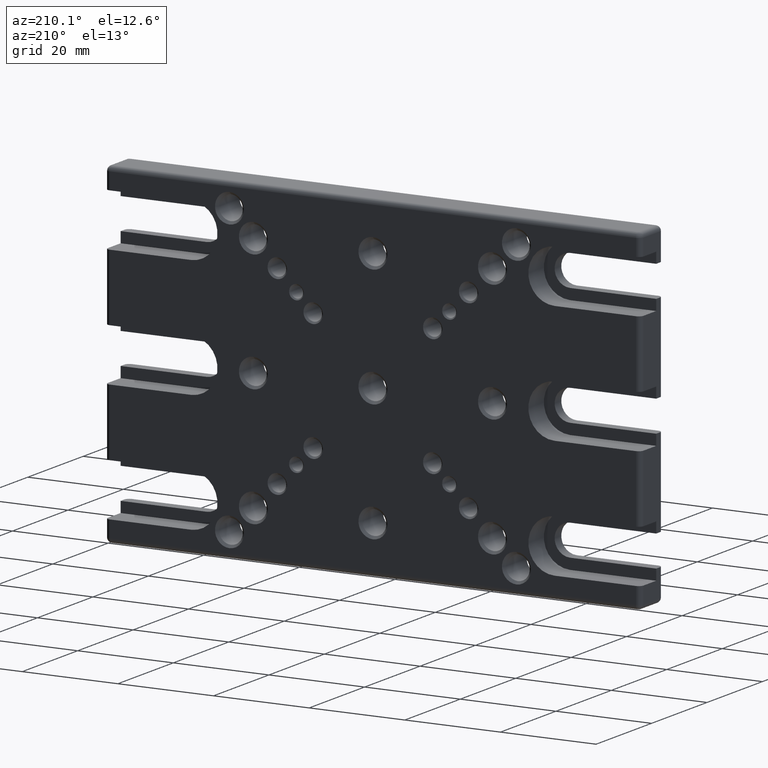
[diagram: clean part render]
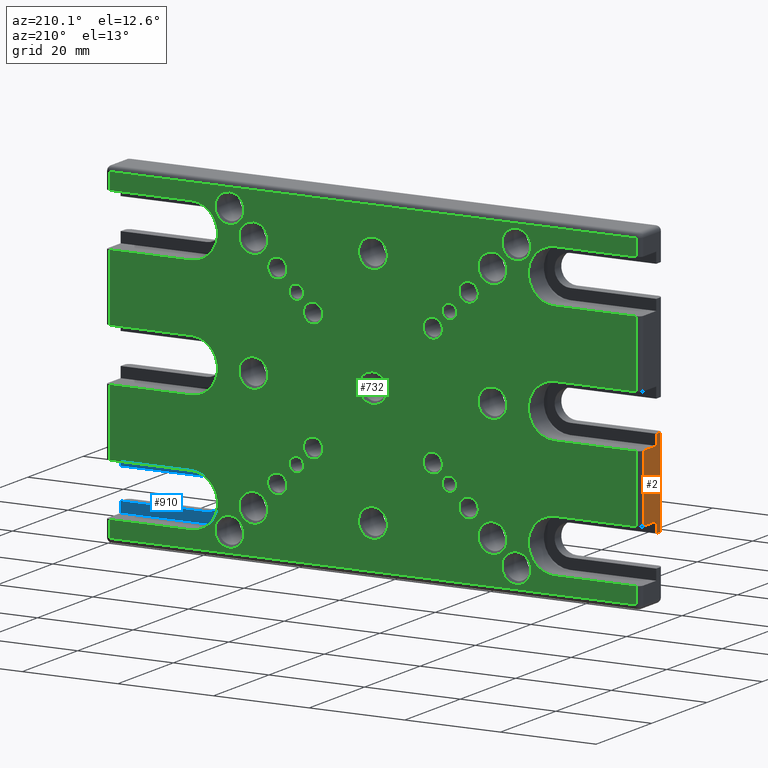
[diagram: same view with three faces highlighted in distinct colors, each labeled with its STEP entity id]
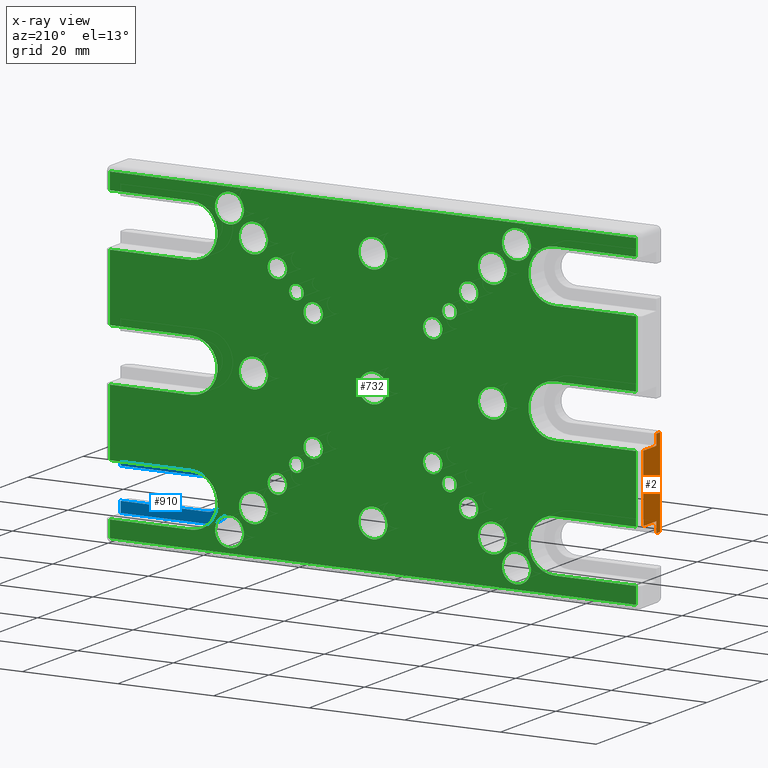
[diagram: x-ray of the same camera — body ghosted, the three highlighted faces saturated]
A machine part, auxiliary view with three faces highlighted in distinct colors.
The next image is the same camera in x-ray (body ghosted, the three faces saturated) — at least one of them is partly hidden behind the body in this view.
Their STEP definitions:

[orange] entity #2 — the highlighted planar face has unit normal (1, 0, 0).
#2 = ADVANCED_FACE ( 'NONE', ( #1616 ), #2871, .F. ) ;
#50 = EDGE_CURVE ( 'NONE', #738, #3254, #495, .T. ) ;
#123 = VERTEX_POINT ( 'NONE', #1476 ) ;
#167 = ORIENTED_EDGE ( 'NONE', *, *, #2212, .T. ) ;
#186 = VERTEX_POINT ( 'NONE', #2132 ) ;
#208 = CARTESIAN_POINT ( 'NONE',  ( -56.00000000000000000, 7.000000000000000000, -34.00000000000000711 ) ) ;
#222 = LINE ( 'NONE', #2743, #764 ) ;
#295 = EDGE_CURVE ( 'NONE', #510, #748, #3774, .T. ) ;
#460 = CARTESIAN_POINT ( 'NONE',  ( -56.00000000000000000, 8.000000000000000000, -3.249999999999996003 ) ) ;
#495 = LINE ( 'NONE', #3657, #2932 ) ;
#510 = VERTEX_POINT ( 'NONE', #2943 ) ;
#540 = DIRECTION ( 'NONE',  ( 0.000000000000000000, 1.000000000000000000, 0.000000000000000000 ) ) ;
#563 = CARTESIAN_POINT ( 'NONE',  ( -56.00000000000000000, 2.400000000000000355, -21.75000000000000000 ) ) ;
#640 = EDGE_CURVE ( 'NONE', #3254, #510, #3329, .T. ) ;
#715 = ORIENTED_EDGE ( 'NONE', *, *, #295, .F. ) ;
#738 = VERTEX_POINT ( 'NONE', #2509 ) ;
#748 = VERTEX_POINT ( 'NONE', #956 ) ;
#764 = VECTOR ( 'NONE', #1216, 1000.000000000000000 ) ;
#838 = VECTOR ( 'NONE', #2889, 1000.000000000000000 ) ;
#896 = DIRECTION ( 'NONE',  ( -0.000000000000000000, 0.000000000000000000, 1.000000000000000000 ) ) ;
#904 = ORIENTED_EDGE ( 'NONE', *, *, #3817, .F. ) ;
#912 = CARTESIAN_POINT ( 'NONE',  ( -56.00000000000000000, 8.000000000000000000, -19.49999999999994671 ) ) ;
#956 = CARTESIAN_POINT ( 'NONE',  ( -56.00000000000000000, 7.000000000000000000, -19.49999999999994671 ) ) ;
#1190 = VECTOR ( 'NONE', #3173, 1000.000000000000000 ) ;
#1216 = DIRECTION ( 'NONE',  ( 0.000000000000000000, 0.000000000000000000, 1.000000000000000000 ) ) ;
#1272 = EDGE_CURVE ( 'NONE', #186, #748, #3648, .T. ) ;
#1476 = CARTESIAN_POINT ( 'NONE',  ( -56.00000000000000000, 2.400000000000000355, -3.249999999999995115 ) ) ;
#1616 = FACE_OUTER_BOUND ( 'NONE', #2246, .T. ) ;
#1620 = VECTOR ( 'NONE', #1826, 1000.000000000000000 ) ;
#1654 = ORIENTED_EDGE ( 'NONE', *, *, #2047, .T. ) ;
#1826 = DIRECTION ( 'NONE',  ( 0.000000000000000000, 1.000000000000000000, 0.000000000000000000 ) ) ;
#1865 = CARTESIAN_POINT ( 'NONE',  ( -56.00000000000000000, 2.400000000000000355, -35.00000000000000711 ) ) ;
#1890 = EDGE_CURVE ( 'NONE', #3431, #186, #3503, .T. ) ;
#2008 = AXIS2_PLACEMENT_3D ( 'NONE', #2987, #2757, #2385 ) ;
#2047 = EDGE_CURVE ( 'NONE', #738, #2102, #222, .T. ) ;
#2071 = DIRECTION ( 'NONE',  ( 0.000000000000000000, 1.000000000000000000, 0.000000000000000000 ) ) ;
#2102 = VERTEX_POINT ( 'NONE', #4054 ) ;
#2132 = CARTESIAN_POINT ( 'NONE',  ( -56.00000000000000000, 7.000000000000000000, -5.499999999999998224 ) ) ;
#2212 = EDGE_CURVE ( 'NONE', #2102, #123, #2696, .T. ) ;
#2246 = EDGE_LOOP ( 'NONE', ( #715, #4034, #3275, #1654, #167, #904, #2593, #3609 ) ) ;
#2385 = DIRECTION ( 'NONE',  ( 0.000000000000000000, 0.000000000000000000, -1.000000000000000000 ) ) ;
#2509 = CARTESIAN_POINT ( 'NONE',  ( -56.00000000000000000, 1.000000000000000000, -21.75000000000000000 ) ) ;
#2549 = VECTOR ( 'NONE', #2071, 1000.000000000000000 ) ;
#2593 = ORIENTED_EDGE ( 'NONE', *, *, #1890, .T. ) ;
#2696 = LINE ( 'NONE', #460, #2549 ) ;
#2743 = CARTESIAN_POINT ( 'NONE',  ( -56.00000000000000000, 1.000000000000000000, -35.00000000000000711 ) ) ;
#2757 = DIRECTION ( 'NONE',  ( 1.000000000000000000, 0.000000000000000000, 0.000000000000000000 ) ) ;
#2835 = LINE ( 'NONE', #1865, #1190 ) ;
#2871 = PLANE ( 'NONE',  #2008 ) ;
#2889 = DIRECTION ( 'NONE',  ( 0.000000000000000000, 1.000000000000000000, 0.000000000000000000 ) ) ;
#2913 = CARTESIAN_POINT ( 'NONE',  ( -56.00000000000000000, 8.000000000000000000, -5.499999999999998224 ) ) ;
#2932 = VECTOR ( 'NONE', #540, 1000.000000000000000 ) ;
#2941 = DIRECTION ( 'NONE',  ( 0.000000000000000000, -0.000000000000000000, -1.000000000000000000 ) ) ;
#2943 = CARTESIAN_POINT ( 'NONE',  ( -56.00000000000000000, 2.400000000000000355, -19.49999999999995026 ) ) ;
#2987 = CARTESIAN_POINT ( 'NONE',  ( -56.00000000000000000, 8.000000000000000000, -35.00000000000000711 ) ) ;
#3095 = VECTOR ( 'NONE', #2941, 1000.000000000000000 ) ;
#3173 = DIRECTION ( 'NONE',  ( -0.000000000000000000, 0.000000000000000000, 1.000000000000000000 ) ) ;
#3254 = VERTEX_POINT ( 'NONE', #563 ) ;
#3260 = VECTOR ( 'NONE', #896, 1000.000000000000000 ) ;
#3275 = ORIENTED_EDGE ( 'NONE', *, *, #50, .F. ) ;
#3329 = LINE ( 'NONE', #3724, #3260 ) ;
#3431 = VERTEX_POINT ( 'NONE', #3513 ) ;
#3503 = LINE ( 'NONE', #2913, #838 ) ;
#3513 = CARTESIAN_POINT ( 'NONE',  ( -56.00000000000000000, 2.400000000000000355, -5.499999999999998224 ) ) ;
#3609 = ORIENTED_EDGE ( 'NONE', *, *, #1272, .T. ) ;
#3648 = LINE ( 'NONE', #208, #3095 ) ;
#3657 = CARTESIAN_POINT ( 'NONE',  ( -56.00000000000000000, 8.000000000000000000, -21.75000000000000000 ) ) ;
#3724 = CARTESIAN_POINT ( 'NONE',  ( -56.00000000000000000, 2.400000000000000355, -35.00000000000000711 ) ) ;
#3774 = LINE ( 'NONE', #912, #1620 ) ;
#3817 = EDGE_CURVE ( 'NONE', #3431, #123, #2835, .T. ) ;
#4034 = ORIENTED_EDGE ( 'NONE', *, *, #640, .F. ) ;
#4054 = CARTESIAN_POINT ( 'NONE',  ( -56.00000000000000000, 1.000000000000000000, -3.249999999999996003 ) ) ;

[blue] entity #910 — the highlighted planar face has unit normal (0, 1, 0).
#81 = ORIENTED_EDGE ( 'NONE', *, *, #1598, .T. ) ;
#82 = ORIENTED_EDGE ( 'NONE', *, *, #3124, .T. ) ;
#84 = DIRECTION ( 'NONE',  ( -0.000000000000000000, -1.000000000000000000, -0.000000000000000000 ) ) ;
#127 = ORIENTED_EDGE ( 'NONE', *, *, #982, .T. ) ;
#128 = VERTEX_POINT ( 'NONE', #3988 ) ;
#192 = VECTOR ( 'NONE', #1189, 1000.000000000000000 ) ;
#302 = CARTESIAN_POINT ( 'NONE',  ( 38.00000000000000000, 2.400000000000000355, -19.50000000000000355 ) ) ;
#363 = VERTEX_POINT ( 'NONE', #2561 ) ;
#458 = FACE_OUTER_BOUND ( 'NONE', #3944, .T. ) ;
#730 = ORIENTED_EDGE ( 'NONE', *, *, #2415, .F. ) ;
#735 = ORIENTED_EDGE ( 'NONE', *, *, #2975, .F. ) ;
#788 = DIRECTION ( 'NONE',  ( 0.000000000000000000, 1.000000000000000000, 0.000000000000000000 ) ) ;
#794 = CARTESIAN_POINT ( 'NONE',  ( 0.000000000000000000, 2.400000000000000355, -21.75000000000000000 ) ) ;
#830 = DIRECTION ( 'NONE',  ( 1.000000000000000000, 0.000000000000000000, 0.000000000000000000 ) ) ;
#842 = DIRECTION ( 'NONE',  ( -0.000000000000000000, -1.000000000000000000, -0.000000000000000000 ) ) ;
#910 = ADVANCED_FACE ( 'NONE', ( #458 ), #2988, .T. ) ;
#981 = AXIS2_PLACEMENT_3D ( 'NONE', #2476, #842, #1879 ) ;
#982 = EDGE_CURVE ( 'NONE', #3322, #3219, #1828, .T. ) ;
#1016 = DIRECTION ( 'NONE',  ( 0.000000000000000000, 0.000000000000000000, 1.000000000000000000 ) ) ;
#1164 = ORIENTED_EDGE ( 'NONE', *, *, #2095, .T. ) ;
#1189 = DIRECTION ( 'NONE',  ( 1.000000000000000000, 0.000000000000000000, 0.000000000000000000 ) ) ;
#1250 = AXIS2_PLACEMENT_3D ( 'NONE', #3927, #788, #3306 ) ;
#1299 = VERTEX_POINT ( 'NONE', #2006 ) ;
#1371 = VECTOR ( 'NONE', #3412, 1000.000000000000000 ) ;
#1434 = EDGE_CURVE ( 'NONE', #363, #128, #4012, .T. ) ;
#1464 = CARTESIAN_POINT ( 'NONE',  ( 55.99999999999998579, 2.400000000000000355, -21.75000000000000000 ) ) ;
#1480 = LINE ( 'NONE', #2433, #1371 ) ;
#1493 = LINE ( 'NONE', #1786, #3791 ) ;
#1598 = EDGE_CURVE ( 'NONE', #128, #2797, #1493, .T. ) ;
#1694 = LINE ( 'NONE', #3015, #2358 ) ;
#1753 = DIRECTION ( 'NONE',  ( 1.000000000000000000, 0.000000000000000000, 0.000000000000000000 ) ) ;
#1786 = CARTESIAN_POINT ( 'NONE',  ( 0.000000000000000000, 2.400000000000000355, -28.24999999999999645 ) ) ;
#1828 = LINE ( 'NONE', #2386, #192 ) ;
#1879 = DIRECTION ( 'NONE',  ( 0.000000000000000000, 0.000000000000000000, 1.000000000000000000 ) ) ;
#1966 = CIRCLE ( 'NONE', #2429, 5.499999999999994671 ) ;
#1983 = VERTEX_POINT ( 'NONE', #1464 ) ;
#2006 = CARTESIAN_POINT ( 'NONE',  ( 38.00000000000000000, 2.400000000000000355, -30.49999999999999289 ) ) ;
#2095 = EDGE_CURVE ( 'NONE', #3219, #1983, #1480, .T. ) ;
#2101 = ORIENTED_EDGE ( 'NONE', *, *, #1434, .T. ) ;
#2184 = CARTESIAN_POINT ( 'NONE',  ( 55.99999999999998579, 2.400000000000000355, -28.24999999999999645 ) ) ;
#2305 = VECTOR ( 'NONE', #3642, 1000.000000000000000 ) ;
#2356 = CARTESIAN_POINT ( 'NONE',  ( 38.00000000000000000, 2.400000000000000355, -24.99999999999999645 ) ) ;
#2358 = VECTOR ( 'NONE', #2997, 1000.000000000000000 ) ;
#2386 = CARTESIAN_POINT ( 'NONE',  ( 0.000000000000000000, 2.400000000000000355, -19.50000000000000355 ) ) ;
#2415 = EDGE_CURVE ( 'NONE', #3322, #1299, #1966, .T. ) ;
#2429 = AXIS2_PLACEMENT_3D ( 'NONE', #2356, #84, #1016 ) ;
#2433 = CARTESIAN_POINT ( 'NONE',  ( 55.99999999999998579, 2.400000000000000355, -35.00000000000000711 ) ) ;
#2476 = CARTESIAN_POINT ( 'NONE',  ( 38.00000000000000000, 2.400000000000000355, -24.99999999999999645 ) ) ;
#2561 = CARTESIAN_POINT ( 'NONE',  ( 38.00000000000000000, 2.400000000000000355, -21.75000000000000000 ) ) ;
#2628 = EDGE_CURVE ( 'NONE', #1299, #3480, #1694, .T. ) ;
#2666 = ORIENTED_EDGE ( 'NONE', *, *, #2628, .F. ) ;
#2742 = CARTESIAN_POINT ( 'NONE',  ( 55.99999999999998579, 2.400000000000000355, -35.00000000000000711 ) ) ;
#2797 = VERTEX_POINT ( 'NONE', #2184 ) ;
#2906 = VECTOR ( 'NONE', #1753, 1000.000000000000000 ) ;
#2975 = EDGE_CURVE ( 'NONE', #363, #1983, #3912, .T. ) ;
#2988 = PLANE ( 'NONE',  #1250 ) ;
#2997 = DIRECTION ( 'NONE',  ( 1.000000000000000000, 0.000000000000000000, 0.000000000000000000 ) ) ;
#3015 = CARTESIAN_POINT ( 'NONE',  ( 0.000000000000000000, 2.400000000000000355, -30.49999999999999289 ) ) ;
#3124 = EDGE_CURVE ( 'NONE', #2797, #3480, #3353, .T. ) ;
#3219 = VERTEX_POINT ( 'NONE', #3411 ) ;
#3286 = CARTESIAN_POINT ( 'NONE',  ( 55.99999999999998579, 2.400000000000000355, -30.49999999999998934 ) ) ;
#3306 = DIRECTION ( 'NONE',  ( 0.000000000000000000, 0.000000000000000000, 1.000000000000000000 ) ) ;
#3322 = VERTEX_POINT ( 'NONE', #302 ) ;
#3353 = LINE ( 'NONE', #2742, #2305 ) ;
#3411 = CARTESIAN_POINT ( 'NONE',  ( 55.99999999999998579, 2.400000000000000355, -19.49999999999995026 ) ) ;
#3412 = DIRECTION ( 'NONE',  ( -1.982541115402065110E-16, 0.000000000000000000, -1.000000000000000000 ) ) ;
#3480 = VERTEX_POINT ( 'NONE', #3286 ) ;
#3642 = DIRECTION ( 'NONE',  ( -1.982541115402065110E-16, 0.000000000000000000, -1.000000000000000000 ) ) ;
#3791 = VECTOR ( 'NONE', #830, 1000.000000000000000 ) ;
#3912 = LINE ( 'NONE', #794, #2906 ) ;
#3927 = CARTESIAN_POINT ( 'NONE',  ( 0.000000000000000000, 2.400000000000000355, 0.000000000000000000 ) ) ;
#3944 = EDGE_LOOP ( 'NONE', ( #735, #2101, #81, #82, #2666, #730, #127, #1164 ) ) ;
#3988 = CARTESIAN_POINT ( 'NONE',  ( 38.00000000000000000, 2.400000000000000355, -28.24999999999999645 ) ) ;
#4012 = CIRCLE ( 'NONE', #981, 3.249999999999999556 ) ;

[green] entity #732 — the highlighted planar face has unit normal (0, 1, 0).
#8 = FACE_BOUND ( 'NONE', #2683, .T. ) ;
#9 = CARTESIAN_POINT ( 'NONE',  ( 0.000000000000000000, 8.000000000000000000, 30.50000000000000355 ) ) ;
#11 = CARTESIAN_POINT ( 'NONE',  ( 19.99999999999999289, 8.000000000000000000, -17.97500000000000142 ) ) ;
#15 = CARTESIAN_POINT ( 'NONE',  ( -38.00000000000000000, 8.000000000000000000, -30.49999999999999289 ) ) ;
#21 = CARTESIAN_POINT ( 'NONE',  ( 55.00000000000000000, 8.000000000000000000, 30.50000000000000355 ) ) ;
#27 = CARTESIAN_POINT ( 'NONE',  ( 24.99999999999998579, 8.000000000000000000, -21.97500000000001208 ) ) ;
#35 = ORIENTED_EDGE ( 'NONE', *, *, #3328, .F. ) ;
#43 = FACE_BOUND ( 'NONE', #2341, .T. ) ;
#49 = VERTEX_POINT ( 'NONE', #2638 ) ;
#51 = DIRECTION ( 'NONE',  ( 0.000000000000000000, 0.000000000000000000, 1.000000000000000000 ) ) ;
#52 = VECTOR ( 'NONE', #1778, 1000.000000000000000 ) ;
#60 = VECTOR ( 'NONE', #3964, 1000.000000000000000 ) ;
#67 = AXIS2_PLACEMENT_3D ( 'NONE', #1773, #859, #4015 ) ;
#74 = CARTESIAN_POINT ( 'NONE',  ( -12.50000000000000000, 8.000000000000000000, -10.47499999999999964 ) ) ;
#78 = ORIENTED_EDGE ( 'NONE', *, *, #1232, .F. ) ;
#86 = DIRECTION ( 'NONE',  ( 0.000000000000000000, 0.000000000000000000, 1.000000000000000000 ) ) ;
#95 = CARTESIAN_POINT ( 'NONE',  ( 55.00000000000000000, 8.000000000000000000, -5.499999999999998224 ) ) ;
#108 = CARTESIAN_POINT ( 'NONE',  ( -20.00000000000000355, 8.000000000000000000, 20.00000000000000000 ) ) ;
#109 = DIRECTION ( 'NONE',  ( 0.000000000000000000, 1.000000000000000000, -0.000000000000000000 ) ) ;
#134 = EDGE_CURVE ( 'NONE', #2221, #3343, #854, .T. ) ;
#179 = LINE ( 'NONE', #1442, #3818 ) ;
#182 = LINE ( 'NONE', #817, #1399 ) ;
#185 = CARTESIAN_POINT ( 'NONE',  ( 54.99999999999998579, 8.000000000000000000, -34.00000000000000711 ) ) ;
#187 = ORIENTED_EDGE ( 'NONE', *, *, #2859, .T. ) ;
#220 = DIRECTION ( 'NONE',  ( 0.000000000000000000, 0.000000000000000000, 1.000000000000000000 ) ) ;
#221 = DIRECTION ( 'NONE',  ( -1.000000000000000000, 0.000000000000000000, 0.000000000000000000 ) ) ;
#229 = DIRECTION ( 'NONE',  ( -0.000000000000000000, 1.000000000000000000, -0.000000000000000000 ) ) ;
#236 = AXIS2_PLACEMENT_3D ( 'NONE', #2195, #1234, #1254 ) ;
#240 = CIRCLE ( 'NONE', #1237, 5.499999999999994671 ) ;
#245 = EDGE_LOOP ( 'NONE', ( #404 ) ) ;
#247 = EDGE_CURVE ( 'NONE', #1265, #1387, #618, .T. ) ;
#256 = AXIS2_PLACEMENT_3D ( 'NONE', #1889, #1871, #603 ) ;
#262 = CARTESIAN_POINT ( 'NONE',  ( 24.99999999999998579, 8.000000000000000000, 24.99999999999998934 ) ) ;
#276 = CARTESIAN_POINT ( 'NONE',  ( 29.99999999999998579, 8.000000000000000000, -30.00000000000000000 ) ) ;
#307 = LINE ( 'NONE', #1572, #567 ) ;
#319 = DIRECTION ( 'NONE',  ( -0.000000000000000000, 1.000000000000000000, -0.000000000000000000 ) ) ;
#322 = CARTESIAN_POINT ( 'NONE',  ( -20.00000000000000711, 8.000000000000000000, -17.97500000000000142 ) ) ;
#331 = ORIENTED_EDGE ( 'NONE', *, *, #3670, .F. ) ;
#351 = FACE_BOUND ( 'NONE', #1492, .T. ) ;
#352 = CARTESIAN_POINT ( 'NONE',  ( 54.99999999999998579, 8.000000000000000000, -34.00000000000000711 ) ) ;
#353 = CARTESIAN_POINT ( 'NONE',  ( 0.000000000000000000, 8.000000000000000000, -30.49999999999999289 ) ) ;
#355 = AXIS2_PLACEMENT_3D ( 'NONE', #1349, #3884, #2609 ) ;
#379 = VERTEX_POINT ( 'NONE', #2247 ) ;
#390 = CARTESIAN_POINT ( 'NONE',  ( -37.99999999999999289, 8.000000000000000000, 30.50000000000000355 ) ) ;
#391 = DIRECTION ( 'NONE',  ( 0.000000000000000000, 0.000000000000000000, 1.000000000000000000 ) ) ;
#393 = DIRECTION ( 'NONE',  ( 1.000000000000000000, 0.000000000000000000, 0.000000000000000000 ) ) ;
#404 = ORIENTED_EDGE ( 'NONE', *, *, #3086, .F. ) ;
#414 = LINE ( 'NONE', #2634, #3950 ) ;
#419 = CARTESIAN_POINT ( 'NONE',  ( 0.000000000000000000, 8.000000000000000000, 3.024999999999999911 ) ) ;
#423 = LINE ( 'NONE', #3233, #601 ) ;
#424 = EDGE_LOOP ( 'NONE', ( #1660 ) ) ;
#428 = EDGE_CURVE ( 'NONE', #3172, #2819, #2604, .T. ) ;
#438 = ORIENTED_EDGE ( 'NONE', *, *, #1611, .T. ) ;
#462 = VECTOR ( 'NONE', #1255, 1000.000000000000000 ) ;
#476 = EDGE_CURVE ( 'NONE', #2704, #2704, #1755, .T. ) ;
#480 = DIRECTION ( 'NONE',  ( 0.000000000000000000, 0.000000000000000000, 1.000000000000000000 ) ) ;
#481 = EDGE_CURVE ( 'NONE', #773, #773, #2938, .T. ) ;
#482 = DIRECTION ( 'NONE',  ( -1.000000000000000000, 0.000000000000000000, 0.000000000000000000 ) ) ;
#491 = AXIS2_PLACEMENT_3D ( 'NONE', #3860, #3222, #391 ) ;
#498 = AXIS2_PLACEMENT_3D ( 'NONE', #3366, #3698, #515 ) ;
#500 = EDGE_CURVE ( 'NONE', #3418, #3799, #891, .T. ) ;
#512 = CARTESIAN_POINT ( 'NONE',  ( 0.000000000000000000, 8.000000000000000000, 19.50000000000000355 ) ) ;
#515 = DIRECTION ( 'NONE',  ( 0.000000000000000000, 0.000000000000000000, 1.000000000000000000 ) ) ;
#517 = EDGE_CURVE ( 'NONE', #1265, #3917, #2143, .T. ) ;
#548 = LINE ( 'NONE', #2475, #2380 ) ;
#561 = EDGE_LOOP ( 'NONE', ( #1404 ) ) ;
#567 = VECTOR ( 'NONE', #2833, 1000.000000000000000 ) ;
#568 = CARTESIAN_POINT ( 'NONE',  ( -12.49999999999999467, 8.000000000000000000, 14.52500000000000391 ) ) ;
#577 = CARTESIAN_POINT ( 'NONE',  ( -55.00000000000000000, 8.000000000000000000, -5.499999999999998224 ) ) ;
#581 = AXIS2_PLACEMENT_3D ( 'NONE', #1415, #2674, #3862 ) ;
#582 = DIRECTION ( 'NONE',  ( 0.000000000000000000, 0.000000000000000000, 1.000000000000000000 ) ) ;
#586 = DIRECTION ( 'NONE',  ( 0.000000000000000000, 0.000000000000000000, 1.000000000000000000 ) ) ;
#601 = VECTOR ( 'NONE', #1938, 1000.000000000000000 ) ;
#603 = DIRECTION ( 'NONE',  ( 0.000000000000000000, 0.000000000000000000, 1.000000000000000000 ) ) ;
#606 = FACE_BOUND ( 'NONE', #1510, .T. ) ;
#607 = DIRECTION ( 'NONE',  ( -0.000000000000000000, -1.000000000000000000, -0.000000000000000000 ) ) ;
#609 = EDGE_CURVE ( 'NONE', #923, #923, #3986, .T. ) ;
#610 = VERTEX_POINT ( 'NONE', #2122 ) ;
#611 = CARTESIAN_POINT ( 'NONE',  ( 0.000000000000000000, 8.000000000000000000, 0.000000000000000000 ) ) ;
#618 = LINE ( 'NONE', #1543, #646 ) ;
#622 = DIRECTION ( 'NONE',  ( -1.000000000000000000, 0.000000000000000000, 0.000000000000000000 ) ) ;
#627 = LINE ( 'NONE', #2575, #3626 ) ;
#632 = EDGE_LOOP ( 'NONE', ( #2481 ) ) ;
#643 = DIRECTION ( 'NONE',  ( 0.000000000000000000, 0.000000000000000000, 1.000000000000000000 ) ) ;
#646 = VECTOR ( 'NONE', #3701, 1000.000000000000000 ) ;
#667 = EDGE_CURVE ( 'NONE', #1387, #3063, #2136, .T. ) ;
#681 = FACE_BOUND ( 'NONE', #1693, .T. ) ;
#686 = CARTESIAN_POINT ( 'NONE',  ( -25.00000000000001776, 8.000000000000000000, -21.97500000000001208 ) ) ;
#692 = ORIENTED_EDGE ( 'NONE', *, *, #1143, .F. ) ;
#707 = CARTESIAN_POINT ( 'NONE',  ( -25.00000000000000711, 8.000000000000000000, 28.02499999999999147 ) ) ;
#709 = AXIS2_PLACEMENT_3D ( 'NONE', #1562, #4049, #2505 ) ;
#719 = EDGE_CURVE ( 'NONE', #610, #610, #3990, .T. ) ;
#723 = AXIS2_PLACEMENT_3D ( 'NONE', #1931, #319, #1547 ) ;
#731 = VERTEX_POINT ( 'NONE', #960 ) ;
#732 = ADVANCED_FACE ( 'NONE', ( #1930, #43, #1605, #3433, #606, #681, #8, #2843, #1565, #351, #2827, #2902, #1275, #1950, #3760, #937, #4072, #2233, #2544, #2490, #2525, #1644, #1310, #2215, #3777, #3741 ), #3203, .T. ) ;
#743 = EDGE_CURVE ( 'NONE', #3418, #1419, #919, .T. ) ;
#768 = ORIENTED_EDGE ( 'NONE', *, *, #3387, .F. ) ;
#773 = VERTEX_POINT ( 'NONE', #1796 ) ;
#791 = EDGE_LOOP ( 'NONE', ( #35 ) ) ;
#792 = CIRCLE ( 'NONE', #3045, 3.024999999999999911 ) ;
#803 = VERTEX_POINT ( 'NONE', #2969 ) ;
#806 = LINE ( 'NONE', #512, #60 ) ;
#807 = ORIENTED_EDGE ( 'NONE', *, *, #3346, .F. ) ;
#808 = DIRECTION ( 'NONE',  ( -0.000000000000000000, 1.000000000000000000, -0.000000000000000000 ) ) ;
#817 = CARTESIAN_POINT ( 'NONE',  ( 0.000000000000000000, 8.000000000000000000, -5.499999999999998224 ) ) ;
#823 = EDGE_LOOP ( 'NONE', ( #1840 ) ) ;
#827 = CARTESIAN_POINT ( 'NONE',  ( 12.50000000000000178, 8.000000000000000000, 12.50000000000000178 ) ) ;
#828 = VECTOR ( 'NONE', #2410, 1000.000000000000000 ) ;
#841 = CARTESIAN_POINT ( 'NONE',  ( 38.00000000000000000, 8.000000000000000000, -19.50000000000000355 ) ) ;
#854 = LINE ( 'NONE', #2113, #3684 ) ;
#857 = EDGE_CURVE ( 'NONE', #803, #379, #1048, .T. ) ;
#859 = DIRECTION ( 'NONE',  ( -0.000000000000000000, 1.000000000000000000, -0.000000000000000000 ) ) ;
#883 = CARTESIAN_POINT ( 'NONE',  ( -55.00000000000000000, 8.000000000000000000, 30.50000000000000355 ) ) ;
#891 = CIRCLE ( 'NONE', #1025, 5.499999999999994671 ) ;
#919 = LINE ( 'NONE', #3469, #2540 ) ;
#920 = CARTESIAN_POINT ( 'NONE',  ( 0.000000000000000000, 8.000000000000000000, 5.500000000000001776 ) ) ;
#923 = VERTEX_POINT ( 'NONE', #11 ) ;
#937 = FACE_BOUND ( 'NONE', #1699, .T. ) ;
#939 = DIRECTION ( 'NONE',  ( 0.000000000000000000, 0.000000000000000000, 1.000000000000000000 ) ) ;
#943 = EDGE_LOOP ( 'NONE', ( #692 ) ) ;
#946 = ORIENTED_EDGE ( 'NONE', *, *, #2777, .T. ) ;
#960 = CARTESIAN_POINT ( 'NONE',  ( -30.00000000000001066, 8.000000000000000000, 33.02499999999999858 ) ) ;
#963 = EDGE_LOOP ( 'NONE', ( #331 ) ) ;
#965 = CARTESIAN_POINT ( 'NONE',  ( 55.00000000000000000, 8.000000000000000000, 5.500000000000001776 ) ) ;
#972 = EDGE_CURVE ( 'NONE', #3781, #3781, #1446, .T. ) ;
#984 = CARTESIAN_POINT ( 'NONE',  ( -38.00000000000000000, 8.000000000000000000, -5.499999999999998224 ) ) ;
#998 = DIRECTION ( 'NONE',  ( -0.000000000000000000, 1.000000000000000000, -0.000000000000000000 ) ) ;
#1002 = DIRECTION ( 'NONE',  ( 1.000000000000000000, 0.000000000000000000, 0.000000000000000000 ) ) ;
#1025 = AXIS2_PLACEMENT_3D ( 'NONE', #1332, #2921, #86 ) ;
#1029 = EDGE_LOOP ( 'NONE', ( #1861 ) ) ;
#1048 = CIRCLE ( 'NONE', #581, 5.500000000000005329 ) ;
#1085 = EDGE_CURVE ( 'NONE', #3414, #3414, #3877, .T. ) ;
#1097 = CIRCLE ( 'NONE', #2617, 2.025000000000000799 ) ;
#1120 = DIRECTION ( 'NONE',  ( -0.000000000000000000, 1.000000000000000000, -0.000000000000000000 ) ) ;
#1134 = CARTESIAN_POINT ( 'NONE',  ( -1.734723475976807094E-14, 8.000000000000000000, 28.02499999999999147 ) ) ;
#1137 = DIRECTION ( 'NONE',  ( 0.000000000000000000, 0.000000000000000000, 1.000000000000000000 ) ) ;
#1143 = EDGE_CURVE ( 'NONE', #2791, #2791, #2498, .T. ) ;
#1167 = CARTESIAN_POINT ( 'NONE',  ( 29.99999999999999645, 8.000000000000000000, 29.99999999999999645 ) ) ;
#1171 = CARTESIAN_POINT ( 'NONE',  ( -55.00000000000000000, 8.000000000000000000, 33.99999999999999289 ) ) ;
#1177 = CARTESIAN_POINT ( 'NONE',  ( -55.00000000000000000, 8.000000000000000000, -19.49999999999995026 ) ) ;
#1180 = EDGE_LOOP ( 'NONE', ( #2382 ) ) ;
#1184 = VERTEX_POINT ( 'NONE', #21 ) ;
#1185 = DIRECTION ( 'NONE',  ( -0.000000000000000000, -1.000000000000000000, -0.000000000000000000 ) ) ;
#1198 = VERTEX_POINT ( 'NONE', #1530 ) ;
#1211 = DIRECTION ( 'NONE',  ( -1.982541115402065110E-16, 0.000000000000000000, -1.000000000000000000 ) ) ;
#1213 = ORIENTED_EDGE ( 'NONE', *, *, #609, .F. ) ;
#1232 = EDGE_CURVE ( 'NONE', #3917, #3380, #3573, .T. ) ;
#1234 = DIRECTION ( 'NONE',  ( 0.000000000000000000, 1.000000000000000000, 0.000000000000000000 ) ) ;
#1237 = AXIS2_PLACEMENT_3D ( 'NONE', #2714, #1185, #1432 ) ;
#1240 = VECTOR ( 'NONE', #3831, 1000.000000000000000 ) ;
#1254 = DIRECTION ( 'NONE',  ( 0.000000000000000000, -0.000000000000000000, 1.000000000000000000 ) ) ;
#1255 = DIRECTION ( 'NONE',  ( 1.000000000000000000, 0.000000000000000000, 0.000000000000000000 ) ) ;
#1265 = VERTEX_POINT ( 'NONE', #390 ) ;
#1275 = FACE_BOUND ( 'NONE', #245, .T. ) ;
#1295 = CARTESIAN_POINT ( 'NONE',  ( 24.99999999999998579, 8.000000000000000000, 28.02499999999999147 ) ) ;
#1310 = FACE_BOUND ( 'NONE', #823, .T. ) ;
#1316 = VERTEX_POINT ( 'NONE', #2594 ) ;
#1330 = EDGE_CURVE ( 'NONE', #3075, #3075, #1847, .T. ) ;
#1332 = CARTESIAN_POINT ( 'NONE',  ( -38.00000000000000000, 8.000000000000000000, -24.99999999999999645 ) ) ;
#1344 = ORIENTED_EDGE ( 'NONE', *, *, #517, .F. ) ;
#1349 = CARTESIAN_POINT ( 'NONE',  ( -37.99999999999999289, 8.000000000000000000, 25.00000000000000711 ) ) ;
#1359 = LINE ( 'NONE', #2681, #2049 ) ;
#1363 = LINE ( 'NONE', #3214, #1240 ) ;
#1380 = LINE ( 'NONE', #2015, #2977 ) ;
#1384 = AXIS2_PLACEMENT_3D ( 'NONE', #827, #229, #1473 ) ;
#1387 = VERTEX_POINT ( 'NONE', #883 ) ;
#1393 = VECTOR ( 'NONE', #221, 1000.000000000000000 ) ;
#1399 = VECTOR ( 'NONE', #2414, 1000.000000000000000 ) ;
#1404 = ORIENTED_EDGE ( 'NONE', *, *, #2995, .F. ) ;
#1409 = VERTEX_POINT ( 'NONE', #3077 ) ;
#1415 = CARTESIAN_POINT ( 'NONE',  ( 37.99999999999999289, 8.000000000000000000, 25.00000000000000711 ) ) ;
#1419 = VERTEX_POINT ( 'NONE', #1177 ) ;
#1427 = ORIENTED_EDGE ( 'NONE', *, *, #2190, .F. ) ;
#1428 = ORIENTED_EDGE ( 'NONE', *, *, #3175, .F. ) ;
#1432 = DIRECTION ( 'NONE',  ( 0.000000000000000000, 0.000000000000000000, 1.000000000000000000 ) ) ;
#1442 = CARTESIAN_POINT ( 'NONE',  ( 55.00000000000000000, 8.000000000000000000, 33.99999999999999289 ) ) ;
#1446 = CIRCLE ( 'NONE', #3155, 3.025000000000003464 ) ;
#1466 = ORIENTED_EDGE ( 'NONE', *, *, #1631, .F. ) ;
#1472 = ORIENTED_EDGE ( 'NONE', *, *, #247, .T. ) ;
#1473 = DIRECTION ( 'NONE',  ( 0.000000000000000000, 0.000000000000000000, 1.000000000000000000 ) ) ;
#1491 = AXIS2_PLACEMENT_3D ( 'NONE', #2389, #2722, #220 ) ;
#1492 = EDGE_LOOP ( 'NONE', ( #3333 ) ) ;
#1494 = EDGE_CURVE ( 'NONE', #3483, #2221, #307, .T. ) ;
#1510 = EDGE_LOOP ( 'NONE', ( #3578 ) ) ;
#1525 = ORIENTED_EDGE ( 'NONE', *, *, #719, .F. ) ;
#1530 = CARTESIAN_POINT ( 'NONE',  ( 19.99999999999999645, 8.000000000000000000, 22.02499999999999858 ) ) ;
#1543 = CARTESIAN_POINT ( 'NONE',  ( 0.000000000000000000, 8.000000000000000000, 30.50000000000000355 ) ) ;
#1547 = DIRECTION ( 'NONE',  ( 0.000000000000000000, 0.000000000000000000, 1.000000000000000000 ) ) ;
#1550 = EDGE_CURVE ( 'NONE', #3436, #3436, #1097, .T. ) ;
#1559 = DIRECTION ( 'NONE',  ( -0.000000000000000000, 1.000000000000000000, -0.000000000000000000 ) ) ;
#1562 = CARTESIAN_POINT ( 'NONE',  ( 12.50000000000000000, 8.000000000000000000, -12.49999999999999822 ) ) ;
#1565 = FACE_BOUND ( 'NONE', #791, .T. ) ;
#1572 = CARTESIAN_POINT ( 'NONE',  ( 0.000000000000000000, 8.000000000000000000, -30.49999999999999289 ) ) ;
#1578 = DIRECTION ( 'NONE',  ( -0.000000000000000000, 1.000000000000000000, -0.000000000000000000 ) ) ;
#1586 = CARTESIAN_POINT ( 'NONE',  ( 16.00000000000000711, 8.000000000000000000, 16.00000000000000000 ) ) ;
#1591 = EDGE_CURVE ( 'NONE', #3133, #3133, #3016, .T. ) ;
#1600 = ORIENTED_EDGE ( 'NONE', *, *, #667, .T. ) ;
#1601 = EDGE_LOOP ( 'NONE', ( #1804, #438, #2353, #3879, #2916, #946, #1427, #2603, #3733, #2926, #3299, #2838, #1741, #187, #78, #1344, #1472, #1600, #2852, #2795, #2508, #3694, #2104, #2224, #768, #1695, #2379, #1765 ) ) ;
#1605 = FACE_BOUND ( 'NONE', #632, .T. ) ;
#1611 = EDGE_CURVE ( 'NONE', #2739, #3483, #240, .T. ) ;
#1617 = EDGE_LOOP ( 'NONE', ( #2259 ) ) ;
#1624 = LINE ( 'NONE', #9, #462 ) ;
#1631 = EDGE_CURVE ( 'NONE', #3763, #3763, #3202, .T. ) ;
#1643 = CARTESIAN_POINT ( 'NONE',  ( -38.00000000000000000, 8.000000000000000000, 5.204170427930422072E-15 ) ) ;
#1644 = FACE_BOUND ( 'NONE', #3090, .T. ) ;
#1650 = VERTEX_POINT ( 'NONE', #1295 ) ;
#1655 = CARTESIAN_POINT ( 'NONE',  ( 38.00000000000000000, 8.000000000000000000, -5.499999999999998224 ) ) ;
#1660 = ORIENTED_EDGE ( 'NONE', *, *, #1550, .F. ) ;
#1665 = DIRECTION ( 'NONE',  ( 0.000000000000000000, 0.000000000000000000, 1.000000000000000000 ) ) ;
#1691 = DIRECTION ( 'NONE',  ( 1.000000000000000000, -0.000000000000000000, 0.000000000000000000 ) ) ;
#1693 = EDGE_LOOP ( 'NONE', ( #2377 ) ) ;
#1695 = ORIENTED_EDGE ( 'NONE', *, *, #3315, .T. ) ;
#1696 = EDGE_CURVE ( 'NONE', #3453, #3453, #1956, .T. ) ;
#1699 = EDGE_LOOP ( 'NONE', ( #4001 ) ) ;
#1712 = DIRECTION ( 'NONE',  ( -0.000000000000000000, 1.000000000000000000, -0.000000000000000000 ) ) ;
#1727 = CIRCLE ( 'NONE', #3819, 3.024999999999999911 ) ;
#1733 = VERTEX_POINT ( 'NONE', #1869 ) ;
#1735 = CARTESIAN_POINT ( 'NONE',  ( -55.00000000000000000, 8.000000000000000000, 33.99999999999999289 ) ) ;
#1739 = CARTESIAN_POINT ( 'NONE',  ( 54.99999999999998579, 8.000000000000000000, -34.00000000000000711 ) ) ;
#1740 = EDGE_CURVE ( 'NONE', #1814, #1814, #3082, .T. ) ;
#1741 = ORIENTED_EDGE ( 'NONE', *, *, #3025, .T. ) ;
#1746 = DIRECTION ( 'NONE',  ( 0.000000000000000000, 0.000000000000000000, 1.000000000000000000 ) ) ;
#1755 = CIRCLE ( 'NONE', #491, 3.024999999999999911 ) ;
#1765 = ORIENTED_EDGE ( 'NONE', *, *, #2517, .T. ) ;
#1767 = AXIS2_PLACEMENT_3D ( 'NONE', #1825, #4028, #1746 ) ;
#1773 = CARTESIAN_POINT ( 'NONE',  ( 16.00000000000000000, 8.000000000000000000, -16.00000000000000000 ) ) ;
#1778 = DIRECTION ( 'NONE',  ( -1.000000000000000000, 0.000000000000000000, 0.000000000000000000 ) ) ;
#1782 = EDGE_LOOP ( 'NONE', ( #1525 ) ) ;
#1794 = CARTESIAN_POINT ( 'NONE',  ( -1.734723475976807094E-14, 8.000000000000000000, -25.00000000000001066 ) ) ;
#1796 = CARTESIAN_POINT ( 'NONE',  ( -16.00000000000000000, 8.000000000000000000, -14.47499999999999964 ) ) ;
#1802 = VERTEX_POINT ( 'NONE', #577 ) ;
#1804 = ORIENTED_EDGE ( 'NONE', *, *, #3901, .F. ) ;
#1814 = VERTEX_POINT ( 'NONE', #1896 ) ;
#1815 = DIRECTION ( 'NONE',  ( -0.000000000000000000, 0.000000000000000000, 1.000000000000000000 ) ) ;
#1825 = CARTESIAN_POINT ( 'NONE',  ( -20.00000000000000711, 8.000000000000000000, -20.00000000000000000 ) ) ;
#1829 = AXIS2_PLACEMENT_3D ( 'NONE', #276, #1578, #2837 ) ;
#1834 = CIRCLE ( 'NONE', #2962, 3.024999999999999911 ) ;
#1840 = ORIENTED_EDGE ( 'NONE', *, *, #1696, .F. ) ;
#1846 = DIRECTION ( 'NONE',  ( 0.000000000000000000, 0.000000000000000000, 1.000000000000000000 ) ) ;
#1847 = CIRCLE ( 'NONE', #2170, 2.024999999999999023 ) ;
#1857 = AXIS2_PLACEMENT_3D ( 'NONE', #262, #2700, #2074 ) ;
#1861 = ORIENTED_EDGE ( 'NONE', *, *, #1085, .F. ) ;
#1869 = CARTESIAN_POINT ( 'NONE',  ( -55.00000000000000000, 8.000000000000000000, -34.00000000000000711 ) ) ;
#1871 = DIRECTION ( 'NONE',  ( -0.000000000000000000, 1.000000000000000000, -0.000000000000000000 ) ) ;
#1873 = DIRECTION ( 'NONE',  ( 0.000000000000000000, 0.000000000000000000, 1.000000000000000000 ) ) ;
#1877 = CARTESIAN_POINT ( 'NONE',  ( -15.99999999999999289, 8.000000000000000000, 17.52499999999999858 ) ) ;
#1889 = CARTESIAN_POINT ( 'NONE',  ( 24.99999999999998579, 8.000000000000000000, -1.040834085586084257E-14 ) ) ;
#1894 = AXIS2_PLACEMENT_3D ( 'NONE', #1903, #1559, #1846 ) ;
#1895 = EDGE_CURVE ( 'NONE', #1409, #1184, #1363, .T. ) ;
#1896 = CARTESIAN_POINT ( 'NONE',  ( 29.99999999999998579, 8.000000000000000000, -26.97499999999999787 ) ) ;
#1897 = DIRECTION ( 'NONE',  ( 0.000000000000000000, 0.000000000000000000, 1.000000000000000000 ) ) ;
#1903 = CARTESIAN_POINT ( 'NONE',  ( -15.99999999999999289, 8.000000000000000000, 16.00000000000000000 ) ) ;
#1918 = CARTESIAN_POINT ( 'NONE',  ( -30.00000000000001421, 8.000000000000000000, -30.00000000000000355 ) ) ;
#1924 = EDGE_LOOP ( 'NONE', ( #2021 ) ) ;
#1929 = CARTESIAN_POINT ( 'NONE',  ( -16.00000000000000000, 8.000000000000000000, -16.00000000000000000 ) ) ;
#1930 = FACE_OUTER_BOUND ( 'NONE', #1601, .T. ) ;
#1931 = CARTESIAN_POINT ( 'NONE',  ( -12.50000000000000000, 8.000000000000000000, -12.49999999999999822 ) ) ;
#1932 = LINE ( 'NONE', #353, #3738 ) ;
#1933 = VERTEX_POINT ( 'NONE', #1655 ) ;
#1938 = DIRECTION ( 'NONE',  ( 1.000000000000000000, 0.000000000000000000, 0.000000000000000000 ) ) ;
#1950 = FACE_BOUND ( 'NONE', #1180, .T. ) ;
#1952 = DIRECTION ( 'NONE',  ( -1.000000000000000000, 0.000000000000000000, 0.000000000000000000 ) ) ;
#1955 = DIRECTION ( 'NONE',  ( -0.000000000000000000, 1.000000000000000000, -0.000000000000000000 ) ) ;
#1956 = CIRCLE ( 'NONE', #1894, 1.524999999999998579 ) ;
#1998 = DIRECTION ( 'NONE',  ( -0.000000000000000000, 0.000000000000000000, 1.000000000000000000 ) ) ;
#2013 = ORIENTED_EDGE ( 'NONE', *, *, #476, .F. ) ;
#2014 = AXIS2_PLACEMENT_3D ( 'NONE', #1586, #3448, #1873 ) ;
#2015 = CARTESIAN_POINT ( 'NONE',  ( 0.000000000000000000, 8.000000000000000000, 5.500000000000001776 ) ) ;
#2019 = LINE ( 'NONE', #1739, #2885 ) ;
#2021 = ORIENTED_EDGE ( 'NONE', *, *, #3674, .F. ) ;
#2046 = CARTESIAN_POINT ( 'NONE',  ( 38.00000000000000000, 8.000000000000000000, 5.500000000000001776 ) ) ;
#2049 = VECTOR ( 'NONE', #1998, 1000.000000000000000 ) ;
#2074 = DIRECTION ( 'NONE',  ( 0.000000000000000000, 0.000000000000000000, 1.000000000000000000 ) ) ;
#2104 = ORIENTED_EDGE ( 'NONE', *, *, #3723, .T. ) ;
#2113 = CARTESIAN_POINT ( 'NONE',  ( 54.99999999999998579, 8.000000000000000000, -34.00000000000000711 ) ) ;
#2122 = CARTESIAN_POINT ( 'NONE',  ( 16.00000000000000711, 8.000000000000000000, 17.52499999999999858 ) ) ;
#2136 = LINE ( 'NONE', #1171, #828 ) ;
#2143 = CIRCLE ( 'NONE', #355, 5.500000000000005329 ) ;
#2157 = VECTOR ( 'NONE', #2933, 1000.000000000000000 ) ;
#2160 = CARTESIAN_POINT ( 'NONE',  ( 12.50000000000000000, 8.000000000000000000, -10.47499999999999964 ) ) ;
#2170 = AXIS2_PLACEMENT_3D ( 'NONE', #108, #2607, #1137 ) ;
#2180 = VECTOR ( 'NONE', #1002, 1000.000000000000000 ) ;
#2183 = EDGE_CURVE ( 'NONE', #1198, #1198, #3794, .T. ) ;
#2190 = EDGE_CURVE ( 'NONE', #3799, #2418, #1932, .T. ) ;
#2195 = CARTESIAN_POINT ( 'NONE',  ( 0.000000000000000000, 8.000000000000000000, 0.000000000000000000 ) ) ;
#2215 = FACE_BOUND ( 'NONE', #1617, .T. ) ;
#2220 = DIRECTION ( 'NONE',  ( -0.000000000000000000, 1.000000000000000000, -0.000000000000000000 ) ) ;
#2221 = VERTEX_POINT ( 'NONE', #3640 ) ;
#2224 = ORIENTED_EDGE ( 'NONE', *, *, #2565, .T. ) ;
#2233 = FACE_BOUND ( 'NONE', #2439, .T. ) ;
#2247 = CARTESIAN_POINT ( 'NONE',  ( 38.00000000000000000, 8.000000000000000000, 19.50000000000000355 ) ) ;
#2251 = CARTESIAN_POINT ( 'NONE',  ( 38.00000000000000000, 8.000000000000000000, 5.204170427930422072E-15 ) ) ;
#2259 = ORIENTED_EDGE ( 'NONE', *, *, #481, .F. ) ;
#2266 = CARTESIAN_POINT ( 'NONE',  ( -55.00000000000000000, 8.000000000000000000, -30.49999999999998934 ) ) ;
#2281 = AXIS2_PLACEMENT_3D ( 'NONE', #3798, #3496, #939 ) ;
#2300 = VERTEX_POINT ( 'NONE', #3846 ) ;
#2301 = CARTESIAN_POINT ( 'NONE',  ( 24.99999999999998579, 8.000000000000000000, -25.00000000000001066 ) ) ;
#2313 = EDGE_CURVE ( 'NONE', #3537, #3537, #1834, .T. ) ;
#2341 = EDGE_LOOP ( 'NONE', ( #2709 ) ) ;
#2353 = ORIENTED_EDGE ( 'NONE', *, *, #1494, .T. ) ;
#2377 = ORIENTED_EDGE ( 'NONE', *, *, #3144, .F. ) ;
#2379 = ORIENTED_EDGE ( 'NONE', *, *, #3516, .T. ) ;
#2380 = VECTOR ( 'NONE', #1815, 1000.000000000000000 ) ;
#2382 = ORIENTED_EDGE ( 'NONE', *, *, #2792, .F. ) ;
#2389 = CARTESIAN_POINT ( 'NONE',  ( 19.99999999999999289, 8.000000000000000000, -20.00000000000000000 ) ) ;
#2390 = DIRECTION ( 'NONE',  ( -0.000000000000000000, 1.000000000000000000, -0.000000000000000000 ) ) ;
#2396 = DIRECTION ( 'NONE',  ( -1.982541115402065110E-16, 0.000000000000000000, -1.000000000000000000 ) ) ;
#2410 = DIRECTION ( 'NONE',  ( -0.000000000000000000, 0.000000000000000000, 1.000000000000000000 ) ) ;
#2414 = DIRECTION ( 'NONE',  ( -1.000000000000000000, 0.000000000000000000, 0.000000000000000000 ) ) ;
#2418 = VERTEX_POINT ( 'NONE', #2266 ) ;
#2439 = EDGE_LOOP ( 'NONE', ( #807 ) ) ;
#2466 = DIRECTION ( 'NONE',  ( 0.000000000000000000, 0.000000000000000000, 1.000000000000000000 ) ) ;
#2475 = CARTESIAN_POINT ( 'NONE',  ( -55.00000000000000000, 8.000000000000000000, 33.99999999999999289 ) ) ;
#2481 = ORIENTED_EDGE ( 'NONE', *, *, #2313, .F. ) ;
#2490 = FACE_BOUND ( 'NONE', #1924, .T. ) ;
#2498 = CIRCLE ( 'NONE', #709, 2.024999999999999023 ) ;
#2505 = DIRECTION ( 'NONE',  ( 0.000000000000000000, 0.000000000000000000, 1.000000000000000000 ) ) ;
#2506 = AXIS2_PLACEMENT_3D ( 'NONE', #1918, #1955, #1897 ) ;
#2508 = ORIENTED_EDGE ( 'NONE', *, *, #3388, .F. ) ;
#2510 = CARTESIAN_POINT ( 'NONE',  ( -55.00000000000000000, 8.000000000000000000, 19.50000000000001421 ) ) ;
#2517 = EDGE_CURVE ( 'NONE', #2947, #2895, #2019, .T. ) ;
#2525 = FACE_BOUND ( 'NONE', #3865, .T. ) ;
#2536 = AXIS2_PLACEMENT_3D ( 'NONE', #1643, #109, #3182 ) ;
#2540 = VECTOR ( 'NONE', #622, 1000.000000000000000 ) ;
#2544 = FACE_BOUND ( 'NONE', #943, .T. ) ;
#2546 = CARTESIAN_POINT ( 'NONE',  ( -25.00000000000000711, 8.000000000000000000, 24.99999999999998934 ) ) ;
#2565 = EDGE_CURVE ( 'NONE', #3843, #3807, #2957, .T. ) ;
#2568 = AXIS2_PLACEMENT_3D ( 'NONE', #3064, #1120, #3382 ) ;
#2575 = CARTESIAN_POINT ( 'NONE',  ( -55.00000000000000000, 8.000000000000000000, 33.99999999999999289 ) ) ;
#2586 = CARTESIAN_POINT ( 'NONE',  ( 0.000000000000000000, 8.000000000000000000, 19.50000000000000355 ) ) ;
#2594 = CARTESIAN_POINT ( 'NONE',  ( 12.50000000000000178, 8.000000000000000000, 14.52500000000000391 ) ) ;
#2595 = DIRECTION ( 'NONE',  ( -0.000000000000000000, 0.000000000000000000, 1.000000000000000000 ) ) ;
#2603 = ORIENTED_EDGE ( 'NONE', *, *, #500, .F. ) ;
#2604 = CIRCLE ( 'NONE', #2536, 5.500000000000000000 ) ;
#2607 = DIRECTION ( 'NONE',  ( -0.000000000000000000, 1.000000000000000000, -0.000000000000000000 ) ) ;
#2609 = DIRECTION ( 'NONE',  ( 0.000000000000000000, 0.000000000000000000, 1.000000000000000000 ) ) ;
#2616 = DIRECTION ( 'NONE',  ( 0.000000000000000000, 0.000000000000000000, 1.000000000000000000 ) ) ;
#2617 = AXIS2_PLACEMENT_3D ( 'NONE', #3677, #808, #2466 ) ;
#2634 = CARTESIAN_POINT ( 'NONE',  ( 0.000000000000000000, 8.000000000000000000, -5.499999999999998224 ) ) ;
#2638 = CARTESIAN_POINT ( 'NONE',  ( 16.00000000000000000, 8.000000000000000000, -14.47500000000000142 ) ) ;
#2641 = CARTESIAN_POINT ( 'NONE',  ( -55.00000000000000000, 8.000000000000000000, 5.500000000000001776 ) ) ;
#2674 = DIRECTION ( 'NONE',  ( -0.000000000000000000, -1.000000000000000000, -0.000000000000000000 ) ) ;
#2681 = CARTESIAN_POINT ( 'NONE',  ( -55.00000000000000000, 8.000000000000000000, 33.99999999999999289 ) ) ;
#2683 = EDGE_LOOP ( 'NONE', ( #2687 ) ) ;
#2687 = ORIENTED_EDGE ( 'NONE', *, *, #972, .F. ) ;
#2700 = DIRECTION ( 'NONE',  ( -0.000000000000000000, 1.000000000000000000, -0.000000000000000000 ) ) ;
#2704 = VERTEX_POINT ( 'NONE', #1134 ) ;
#2706 = CIRCLE ( 'NONE', #3488, 3.024999999999999911 ) ;
#2709 = ORIENTED_EDGE ( 'NONE', *, *, #2801, .F. ) ;
#2714 = CARTESIAN_POINT ( 'NONE',  ( 38.00000000000000000, 8.000000000000000000, -24.99999999999999645 ) ) ;
#2722 = DIRECTION ( 'NONE',  ( -0.000000000000000000, 1.000000000000000000, -0.000000000000000000 ) ) ;
#2739 = VERTEX_POINT ( 'NONE', #841 ) ;
#2759 = DIRECTION ( 'NONE',  ( -0.000000000000000000, 1.000000000000000000, -0.000000000000000000 ) ) ;
#2777 = EDGE_CURVE ( 'NONE', #1733, #2418, #548, .T. ) ;
#2791 = VERTEX_POINT ( 'NONE', #2160 ) ;
#2792 = EDGE_CURVE ( 'NONE', #3866, #3866, #2706, .T. ) ;
#2795 = ORIENTED_EDGE ( 'NONE', *, *, #1895, .T. ) ;
#2801 = EDGE_CURVE ( 'NONE', #3230, #3230, #3038, .T. ) ;
#2814 = AXIS2_PLACEMENT_3D ( 'NONE', #1929, #998, #1665 ) ;
#2818 = CARTESIAN_POINT ( 'NONE',  ( 55.00000000000000000, 8.000000000000000000, 19.50000000000001421 ) ) ;
#2819 = VERTEX_POINT ( 'NONE', #984 ) ;
#2827 = FACE_BOUND ( 'NONE', #1029, .T. ) ;
#2831 = CARTESIAN_POINT ( 'NONE',  ( 24.99999999999998579, 8.000000000000000000, 3.024999999999989697 ) ) ;
#2833 = DIRECTION ( 'NONE',  ( 1.000000000000000000, 0.000000000000000000, 0.000000000000000000 ) ) ;
#2837 = DIRECTION ( 'NONE',  ( 0.000000000000000000, 0.000000000000000000, 1.000000000000000000 ) ) ;
#2838 = ORIENTED_EDGE ( 'NONE', *, *, #428, .F. ) ;
#2843 = FACE_BOUND ( 'NONE', #963, .T. ) ;
#2852 = ORIENTED_EDGE ( 'NONE', *, *, #2950, .T. ) ;
#2859 = EDGE_CURVE ( 'NONE', #3897, #3380, #627, .T. ) ;
#2863 = VERTEX_POINT ( 'NONE', #27 ) ;
#2864 = CARTESIAN_POINT ( 'NONE',  ( 55.00000000000000000, 8.000000000000000000, -19.49999999999995026 ) ) ;
#2885 = VECTOR ( 'NONE', #2396, 1000.000000000000000 ) ;
#2895 = VERTEX_POINT ( 'NONE', #2864 ) ;
#2902 = FACE_BOUND ( 'NONE', #3856, .T. ) ;
#2907 = VERTEX_POINT ( 'NONE', #74 ) ;
#2909 = CIRCLE ( 'NONE', #67, 1.524999999999998579 ) ;
#2916 = ORIENTED_EDGE ( 'NONE', *, *, #3125, .T. ) ;
#2921 = DIRECTION ( 'NONE',  ( 0.000000000000000000, 1.000000000000000000, -0.000000000000000000 ) ) ;
#2926 = ORIENTED_EDGE ( 'NONE', *, *, #3044, .T. ) ;
#2933 = DIRECTION ( 'NONE',  ( -1.982541115402065110E-16, 0.000000000000000000, -1.000000000000000000 ) ) ;
#2938 = CIRCLE ( 'NONE', #2814, 1.525000000000000355 ) ;
#2946 = DIRECTION ( 'NONE',  ( -0.000000000000000000, 1.000000000000000000, -0.000000000000000000 ) ) ;
#2947 = VERTEX_POINT ( 'NONE', #95 ) ;
#2950 = EDGE_CURVE ( 'NONE', #3063, #1409, #179, .T. ) ;
#2957 = LINE ( 'NONE', #185, #2157 ) ;
#2962 = AXIS2_PLACEMENT_3D ( 'NONE', #3929, #2946, #480 ) ;
#2969 = CARTESIAN_POINT ( 'NONE',  ( 37.99999999999999289, 8.000000000000000000, 30.50000000000000355 ) ) ;
#2977 = VECTOR ( 'NONE', #482, 1000.000000000000000 ) ;
#2995 = EDGE_CURVE ( 'NONE', #2863, #2863, #3427, .T. ) ;
#3016 = CIRCLE ( 'NONE', #498, 3.024999999999999911 ) ;
#3025 = EDGE_CURVE ( 'NONE', #3172, #3897, #1380, .T. ) ;
#3037 = EDGE_LOOP ( 'NONE', ( #1428 ) ) ;
#3038 = CIRCLE ( 'NONE', #2506, 3.024999999999999911 ) ;
#3044 = EDGE_CURVE ( 'NONE', #1419, #1802, #1359, .T. ) ;
#3045 = AXIS2_PLACEMENT_3D ( 'NONE', #1794, #2390, #586 ) ;
#3063 = VERTEX_POINT ( 'NONE', #1735 ) ;
#3064 = CARTESIAN_POINT ( 'NONE',  ( -30.00000000000001066, 8.000000000000000000, 29.99999999999999645 ) ) ;
#3075 = VERTEX_POINT ( 'NONE', #3747 ) ;
#3077 = CARTESIAN_POINT ( 'NONE',  ( 55.00000000000000000, 8.000000000000000000, 33.99999999999999289 ) ) ;
#3082 = CIRCLE ( 'NONE', #1829, 3.024999999999999911 ) ;
#3086 = EDGE_CURVE ( 'NONE', #2300, #2300, #792, .T. ) ;
#3090 = EDGE_LOOP ( 'NONE', ( #1213 ) ) ;
#3091 = CARTESIAN_POINT ( 'NONE',  ( -55.00000000000000000, 8.000000000000000000, -34.00000000000000711 ) ) ;
#3125 = EDGE_CURVE ( 'NONE', #3343, #1733, #3330, .T. ) ;
#3133 = VERTEX_POINT ( 'NONE', #3151 ) ;
#3144 = EDGE_CURVE ( 'NONE', #1650, #1650, #3560, .T. ) ;
#3148 = DIRECTION ( 'NONE',  ( 0.000000000000000000, 0.000000000000000000, 1.000000000000000000 ) ) ;
#3151 = CARTESIAN_POINT ( 'NONE',  ( -25.00000000000001421, 8.000000000000000000, 3.024999999999989697 ) ) ;
#3155 = AXIS2_PLACEMENT_3D ( 'NONE', #1167, #2759, #582 ) ;
#3166 = LINE ( 'NONE', #920, #2180 ) ;
#3170 = VERTEX_POINT ( 'NONE', #707 ) ;
#3172 = VERTEX_POINT ( 'NONE', #3993 ) ;
#3175 = EDGE_CURVE ( 'NONE', #49, #49, #2909, .T. ) ;
#3182 = DIRECTION ( 'NONE',  ( 0.000000000000000000, 0.000000000000000000, 1.000000000000000000 ) ) ;
#3202 = CIRCLE ( 'NONE', #1767, 2.024999999999999023 ) ;
#3203 = PLANE ( 'NONE',  #236 ) ;
#3204 = DIRECTION ( 'NONE',  ( -0.000000000000000000, 1.000000000000000000, -0.000000000000000000 ) ) ;
#3214 = CARTESIAN_POINT ( 'NONE',  ( 54.99999999999998579, 8.000000000000000000, -34.00000000000000711 ) ) ;
#3222 = DIRECTION ( 'NONE',  ( -0.000000000000000000, 1.000000000000000000, -0.000000000000000000 ) ) ;
#3229 = CIRCLE ( 'NONE', #723, 2.024999999999999023 ) ;
#3230 = VERTEX_POINT ( 'NONE', #3499 ) ;
#3233 = CARTESIAN_POINT ( 'NONE',  ( 0.000000000000000000, 8.000000000000000000, -19.50000000000000355 ) ) ;
#3246 = CARTESIAN_POINT ( 'NONE',  ( 38.00000000000000000, 8.000000000000000000, -30.49999999999999289 ) ) ;
#3299 = ORIENTED_EDGE ( 'NONE', *, *, #4039, .F. ) ;
#3315 = EDGE_CURVE ( 'NONE', #3713, #1933, #3628, .T. ) ;
#3328 = EDGE_CURVE ( 'NONE', #3170, #3170, #1727, .T. ) ;
#3330 = LINE ( 'NONE', #3091, #1393 ) ;
#3333 = ORIENTED_EDGE ( 'NONE', *, *, #1591, .F. ) ;
#3343 = VERTEX_POINT ( 'NONE', #352 ) ;
#3346 = EDGE_CURVE ( 'NONE', #2907, #2907, #3229, .T. ) ;
#3363 = AXIS2_PLACEMENT_3D ( 'NONE', #2251, #607, #643 ) ;
#3366 = CARTESIAN_POINT ( 'NONE',  ( -25.00000000000001421, 8.000000000000000000, -1.040834085586084257E-14 ) ) ;
#3376 = CARTESIAN_POINT ( 'NONE',  ( 29.99999999999999645, 8.000000000000000000, 33.02499999999999858 ) ) ;
#3380 = VERTEX_POINT ( 'NONE', #2510 ) ;
#3382 = DIRECTION ( 'NONE',  ( 0.000000000000000000, 0.000000000000000000, 1.000000000000000000 ) ) ;
#3387 = EDGE_CURVE ( 'NONE', #3713, #3807, #3166, .T. ) ;
#3388 = EDGE_CURVE ( 'NONE', #803, #1184, #1624, .T. ) ;
#3414 = VERTEX_POINT ( 'NONE', #2831 ) ;
#3418 = VERTEX_POINT ( 'NONE', #4073 ) ;
#3424 = CIRCLE ( 'NONE', #1384, 2.025000000000000799 ) ;
#3427 = CIRCLE ( 'NONE', #3954, 3.024999999999999911 ) ;
#3433 = FACE_BOUND ( 'NONE', #561, .T. ) ;
#3436 = VERTEX_POINT ( 'NONE', #568 ) ;
#3448 = DIRECTION ( 'NONE',  ( -0.000000000000000000, 1.000000000000000000, -0.000000000000000000 ) ) ;
#3453 = VERTEX_POINT ( 'NONE', #1877 ) ;
#3469 = CARTESIAN_POINT ( 'NONE',  ( 0.000000000000000000, 8.000000000000000000, -19.50000000000000355 ) ) ;
#3483 = VERTEX_POINT ( 'NONE', #3246 ) ;
#3488 = AXIS2_PLACEMENT_3D ( 'NONE', #611, #2220, #51 ) ;
#3496 = DIRECTION ( 'NONE',  ( -0.000000000000000000, 1.000000000000000000, -0.000000000000000000 ) ) ;
#3499 = CARTESIAN_POINT ( 'NONE',  ( -30.00000000000001421, 8.000000000000000000, -26.97500000000000142 ) ) ;
#3516 = EDGE_CURVE ( 'NONE', #1933, #2947, #414, .T. ) ;
#3537 = VERTEX_POINT ( 'NONE', #686 ) ;
#3560 = CIRCLE ( 'NONE', #1857, 3.024999999999999911 ) ;
#3573 = LINE ( 'NONE', #2586, #52 ) ;
#3578 = ORIENTED_EDGE ( 'NONE', *, *, #1740, .F. ) ;
#3626 = VECTOR ( 'NONE', #2595, 1000.000000000000000 ) ;
#3628 = CIRCLE ( 'NONE', #3363, 5.500000000000000000 ) ;
#3640 = CARTESIAN_POINT ( 'NONE',  ( 55.00000000000000000, 8.000000000000000000, -30.49999999999998934 ) ) ;
#3670 = EDGE_CURVE ( 'NONE', #731, #731, #3882, .T. ) ;
#3674 = EDGE_CURVE ( 'NONE', #1316, #1316, #3424, .T. ) ;
#3677 = CARTESIAN_POINT ( 'NONE',  ( -12.49999999999999467, 8.000000000000000000, 12.50000000000000178 ) ) ;
#3684 = VECTOR ( 'NONE', #1211, 1000.000000000000000 ) ;
#3694 = ORIENTED_EDGE ( 'NONE', *, *, #857, .T. ) ;
#3698 = DIRECTION ( 'NONE',  ( -0.000000000000000000, 1.000000000000000000, -0.000000000000000000 ) ) ;
#3701 = DIRECTION ( 'NONE',  ( -1.000000000000000000, 0.000000000000000000, 0.000000000000000000 ) ) ;
#3713 = VERTEX_POINT ( 'NONE', #2046 ) ;
#3723 = EDGE_CURVE ( 'NONE', #379, #3843, #806, .T. ) ;
#3733 = ORIENTED_EDGE ( 'NONE', *, *, #743, .T. ) ;
#3738 = VECTOR ( 'NONE', #1952, 1000.000000000000000 ) ;
#3741 = FACE_BOUND ( 'NONE', #1782, .T. ) ;
#3747 = CARTESIAN_POINT ( 'NONE',  ( -20.00000000000000355, 8.000000000000000000, 22.02499999999999858 ) ) ;
#3760 = FACE_BOUND ( 'NONE', #424, .T. ) ;
#3763 = VERTEX_POINT ( 'NONE', #322 ) ;
#3767 = ORIENTED_EDGE ( 'NONE', *, *, #2183, .F. ) ;
#3777 = FACE_BOUND ( 'NONE', #3037, .T. ) ;
#3781 = VERTEX_POINT ( 'NONE', #3376 ) ;
#3794 = CIRCLE ( 'NONE', #2281, 2.024999999999999023 ) ;
#3798 = CARTESIAN_POINT ( 'NONE',  ( 19.99999999999999645, 8.000000000000000000, 20.00000000000000000 ) ) ;
#3799 = VERTEX_POINT ( 'NONE', #15 ) ;
#3807 = VERTEX_POINT ( 'NONE', #965 ) ;
#3818 = VECTOR ( 'NONE', #1691, 1000.000000000000000 ) ;
#3819 = AXIS2_PLACEMENT_3D ( 'NONE', #2546, #3204, #3148 ) ;
#3831 = DIRECTION ( 'NONE',  ( -1.982541115402065110E-16, 0.000000000000000000, -1.000000000000000000 ) ) ;
#3843 = VERTEX_POINT ( 'NONE', #2818 ) ;
#3846 = CARTESIAN_POINT ( 'NONE',  ( -1.734723475976807094E-14, 8.000000000000000000, -21.97500000000001208 ) ) ;
#3849 = CARTESIAN_POINT ( 'NONE',  ( -38.00000000000000000, 8.000000000000000000, 19.50000000000000355 ) ) ;
#3856 = EDGE_LOOP ( 'NONE', ( #2013 ) ) ;
#3860 = CARTESIAN_POINT ( 'NONE',  ( -1.734723475976807094E-14, 8.000000000000000000, 24.99999999999998934 ) ) ;
#3862 = DIRECTION ( 'NONE',  ( 0.000000000000000000, 0.000000000000000000, 1.000000000000000000 ) ) ;
#3865 = EDGE_LOOP ( 'NONE', ( #3767 ) ) ;
#3866 = VERTEX_POINT ( 'NONE', #419 ) ;
#3877 = CIRCLE ( 'NONE', #256, 3.024999999999999911 ) ;
#3879 = ORIENTED_EDGE ( 'NONE', *, *, #134, .T. ) ;
#3882 = CIRCLE ( 'NONE', #2568, 3.025000000000003464 ) ;
#3884 = DIRECTION ( 'NONE',  ( 0.000000000000000000, 1.000000000000000000, -0.000000000000000000 ) ) ;
#3897 = VERTEX_POINT ( 'NONE', #2641 ) ;
#3901 = EDGE_CURVE ( 'NONE', #2739, #2895, #423, .T. ) ;
#3917 = VERTEX_POINT ( 'NONE', #3849 ) ;
#3929 = CARTESIAN_POINT ( 'NONE',  ( -25.00000000000001776, 8.000000000000000000, -25.00000000000001066 ) ) ;
#3950 = VECTOR ( 'NONE', #393, 1000.000000000000000 ) ;
#3954 = AXIS2_PLACEMENT_3D ( 'NONE', #2301, #1712, #2616 ) ;
#3961 = EDGE_LOOP ( 'NONE', ( #1466 ) ) ;
#3964 = DIRECTION ( 'NONE',  ( 1.000000000000000000, 0.000000000000000000, 0.000000000000000000 ) ) ;
#3986 = CIRCLE ( 'NONE', #1491, 2.024999999999999023 ) ;
#3990 = CIRCLE ( 'NONE', #2014, 1.524999999999998579 ) ;
#3993 = CARTESIAN_POINT ( 'NONE',  ( -38.00000000000000000, 8.000000000000000000, 5.500000000000001776 ) ) ;
#4001 = ORIENTED_EDGE ( 'NONE', *, *, #1330, .F. ) ;
#4015 = DIRECTION ( 'NONE',  ( 0.000000000000000000, 0.000000000000000000, 1.000000000000000000 ) ) ;
#4028 = DIRECTION ( 'NONE',  ( -0.000000000000000000, 1.000000000000000000, -0.000000000000000000 ) ) ;
#4039 = EDGE_CURVE ( 'NONE', #2819, #1802, #182, .T. ) ;
#4049 = DIRECTION ( 'NONE',  ( -0.000000000000000000, 1.000000000000000000, -0.000000000000000000 ) ) ;
#4072 = FACE_BOUND ( 'NONE', #3961, .T. ) ;
#4073 = CARTESIAN_POINT ( 'NONE',  ( -38.00000000000000000, 8.000000000000000000, -19.50000000000000355 ) ) ;